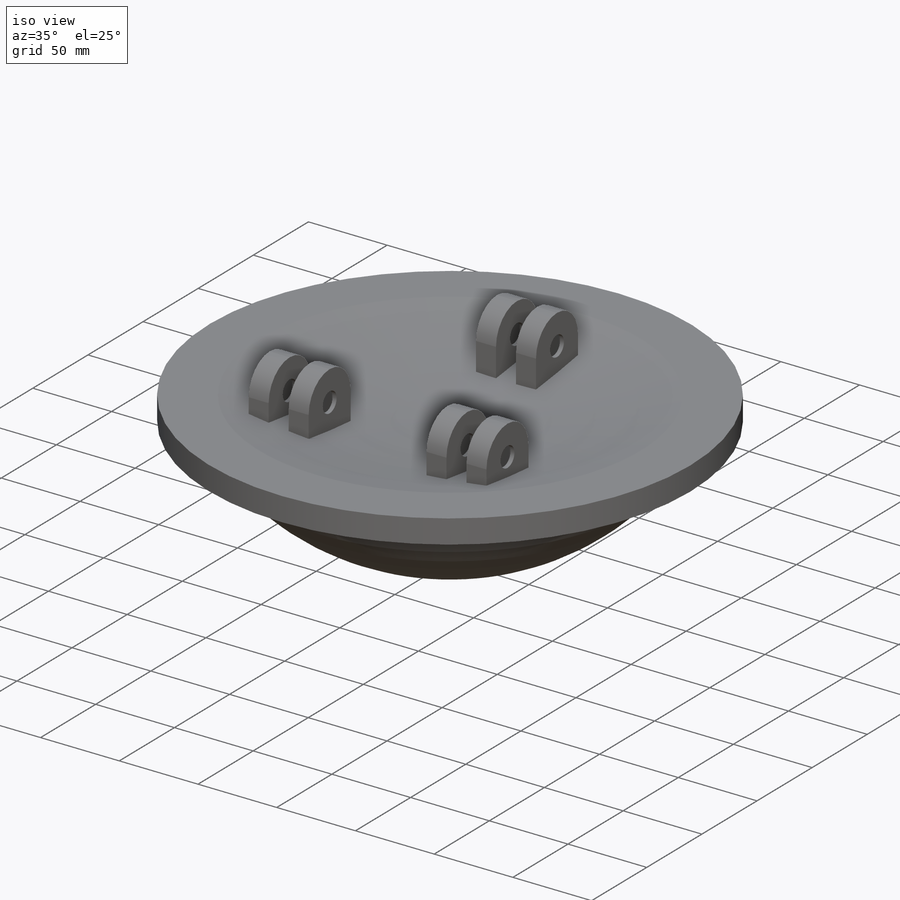
[diagram: iso view]
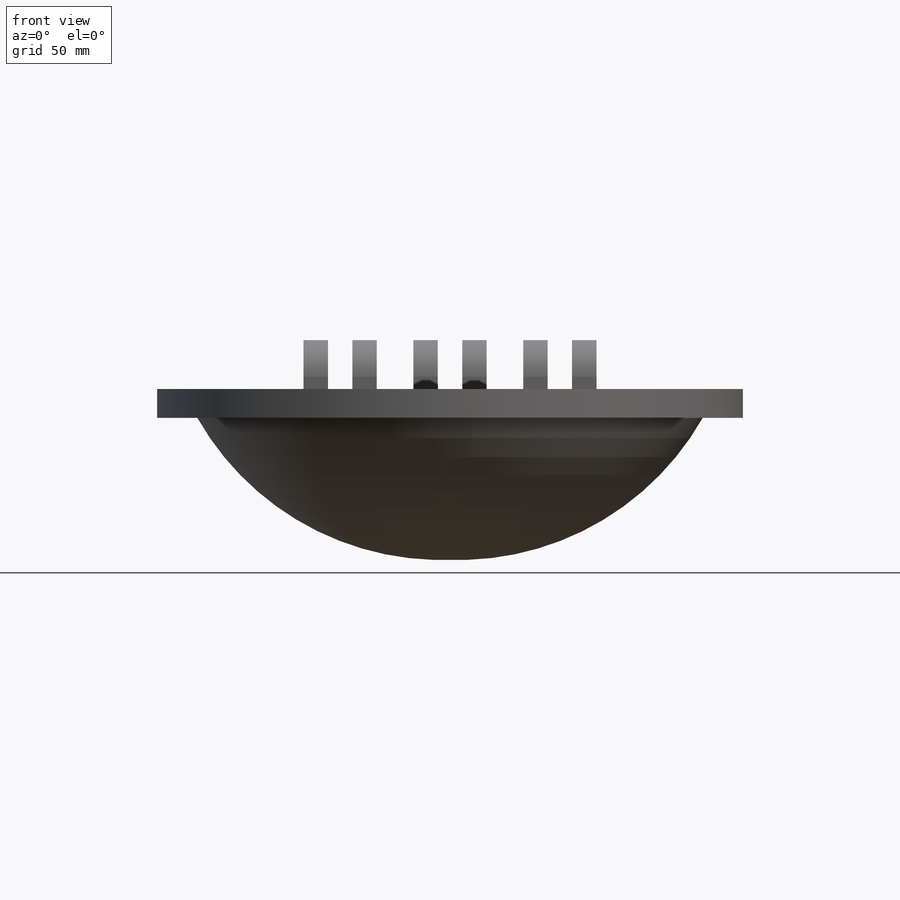
[diagram: front view]
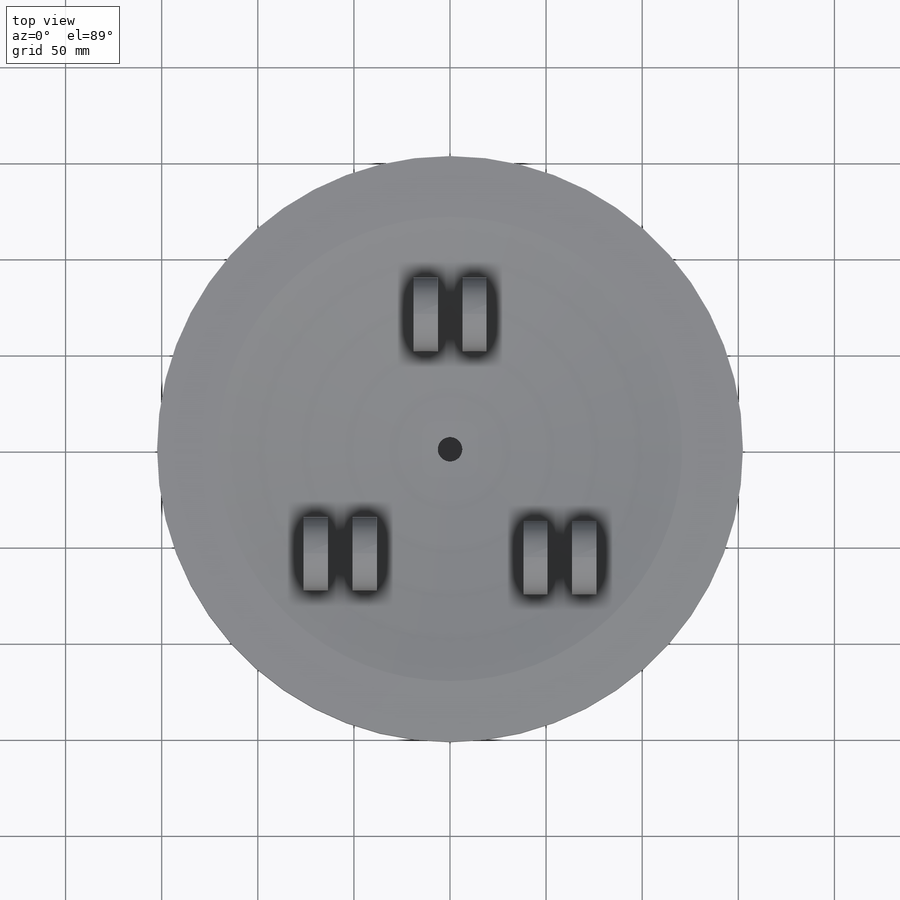
[diagram: top view]
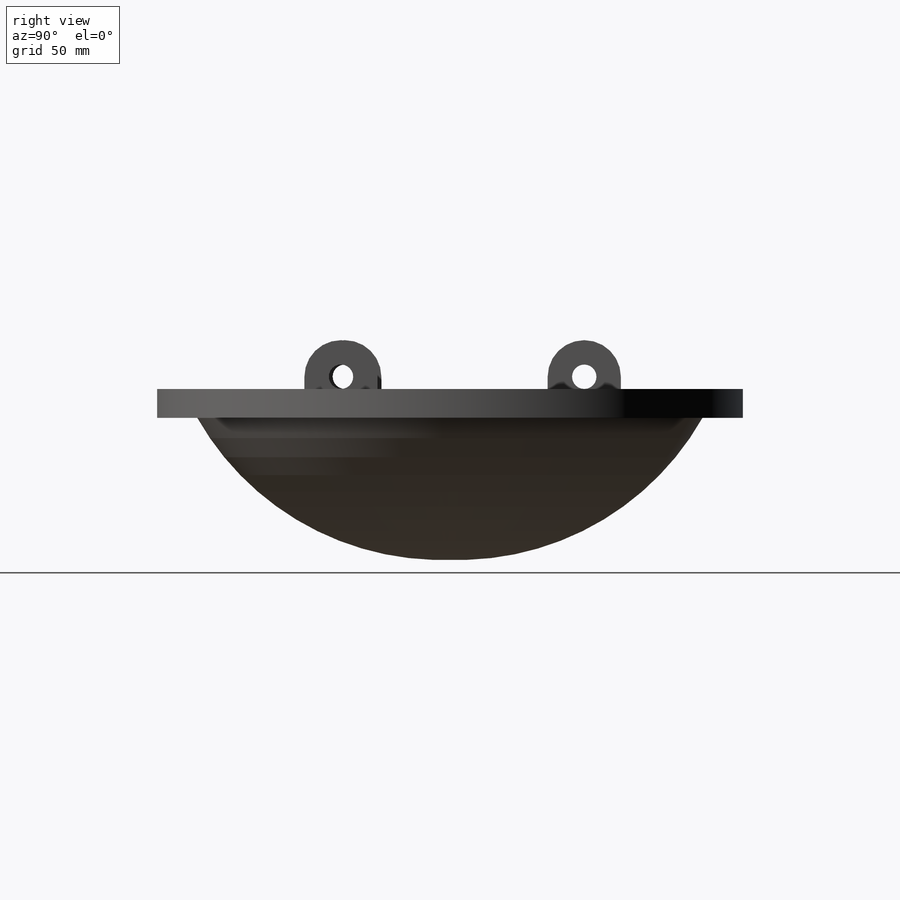
[diagram: right view]
SOLIDWORKS PART (.sldprt)
format: sldprt  version: not decoded by parser v0  size: 411,136 bytes
history: native  units: mm
features: sketch x5, shell x4, extrude x2, material x1, cut_revolve x1, fillet x1, hole x1 (+14 scaffold rows collapsed)
feature tree (29):
  scaffold x14  (default folders/planes/origin — collapsed)
  material  "6061 Alloy"
  sketch  "Sketch1"  dims[D1=304.8mm]
  extrude  "Extrude1"  Depth=88.9mm
  sketch  "Sketch2"
  cut_revolve  "Cut-Revolve1"  Angle=360deg
  sketch  "Sketch3"  dims[c1.D1=12.7mm c1.D2=38.1mm c1.D3=12.7mm c1.D4=38.1mm c1.D5=38.1mm c1.D6=12.7mm c1.D7=12.7mm c1.D8=38.1mm c1.D9=38.1mm c1.D10=38.1mm c1.D11=12.7mm c1.D12=12.7mm c1.D13=12.7mm c1.D14=12.7mm c1.D15=12.7mm c1.D16=6.35mm c1.D17=50.8mm c1.D18=~59.241224mm c2.D16=6.35mm c2.D18=50.8mm c2.D19=38.1mm c2.D20=38.1mm c2.D21=38.1mm c2.D22=38.1mm c2.D23=38.1mm c2.D24=38.1mm c2.D5=12.7mm c2.D6=38.1mm c2.D7=12.7mm c2.D8=38.1mm c2.D9=12.7mm c3.D5=12.7mm c3.D6=38.1mm c3.D7=12.7mm c3.D8=12.7mm c3.D9=38.1mm c3.D10=12.7mm c3.D11=38.1mm c3.D12=12.7mm c3.D13=12.7mm c3.D14=38.1mm c3.D19=38.1mm c3.D20=38.1mm]
  extrude  "Extrude2"  Depth=25.4mm
  fillet  "Fillet1"  Radius=19.05mm
  shell  "Shell1"  Thickness=2.54mm faceID=6
  shell  "FaceIDTag-24"  Thickness=24 faceID=24
  shell  "FaceIDTag-25"  Thickness=25 faceID=25
  shell  "FaceIDTag-119"  Thickness=119 faceID=119
  hole  "1/2 (0.5) Diameter Hole1"  Diameter=12.7mm Depth=39.878mm
  sketch  "3DSketch1"
  sketch  "Sketch4"  dims[hole-wizard template sketch: 50 standard entries collapsed; hole parameters above]
decode coverage: 12 of 14 modeling features carry decoded parameters
note: ~ marks probable driven/reference dimensions
note: suppression state not decoded; provenance and decode notes live in map.json
